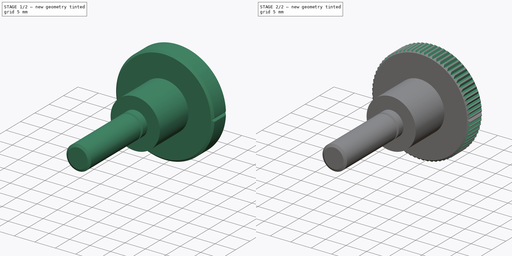
[diagram: build sequence overview — one tinted view per stage of 2, left to right]
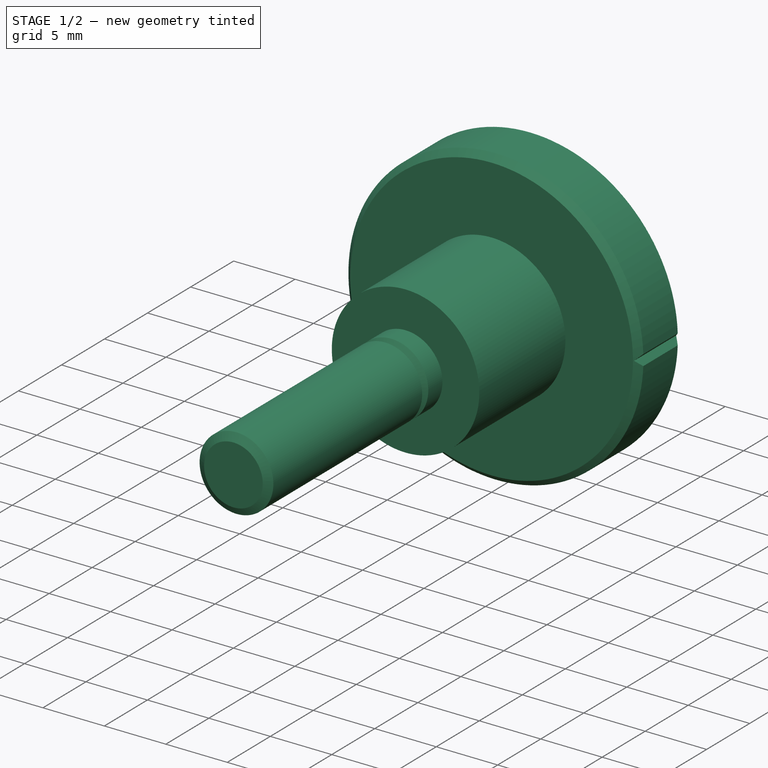
[diagram: stage 1 of 2 — iso view after this stage's code; geometry added in this stage tinted green]
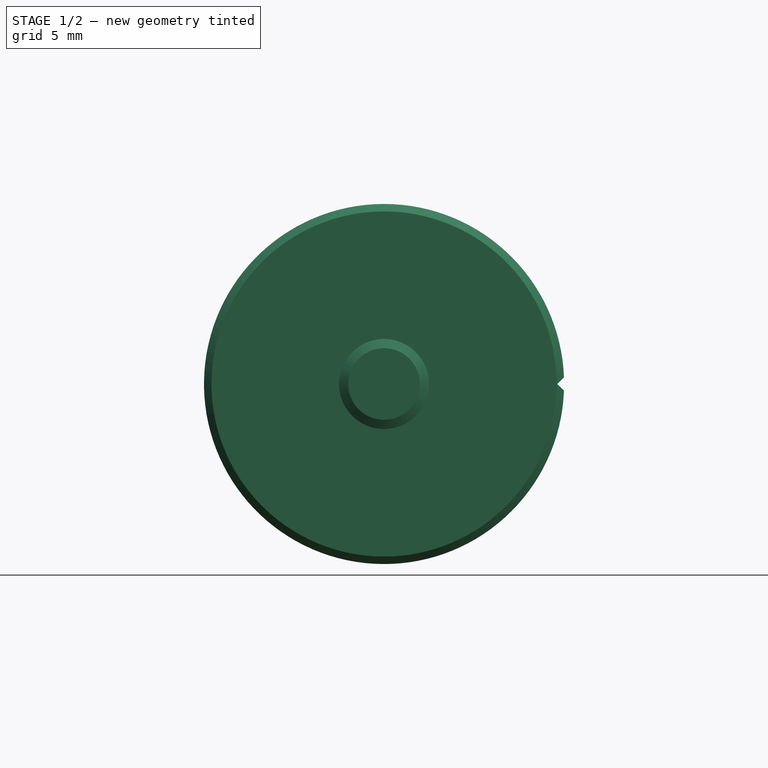
[diagram: stage 1 of 2 — front view after this stage's code; geometry added in this stage tinted green]
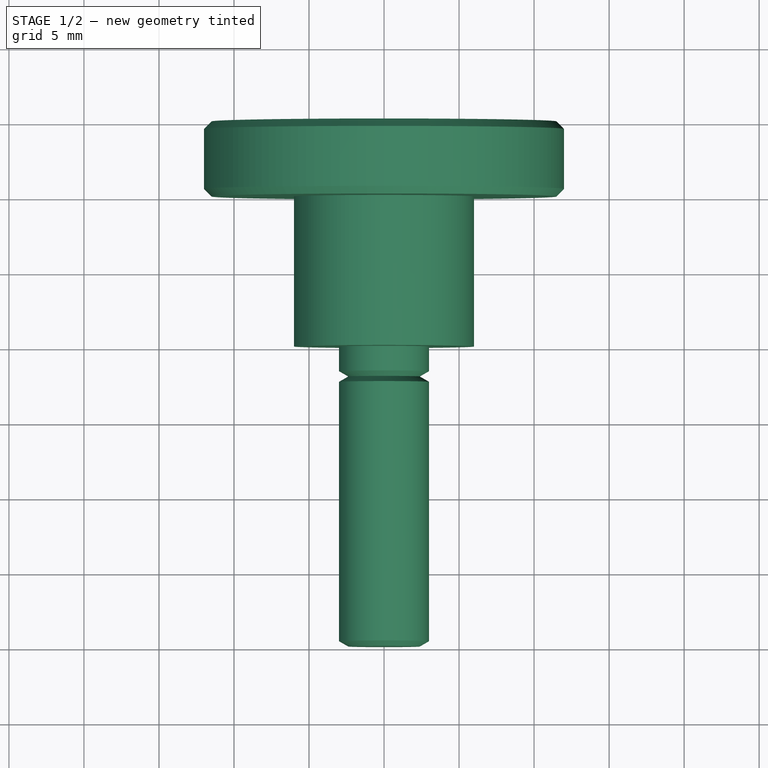
[diagram: stage 1 of 2 — top view after this stage's code; geometry added in this stage tinted green]
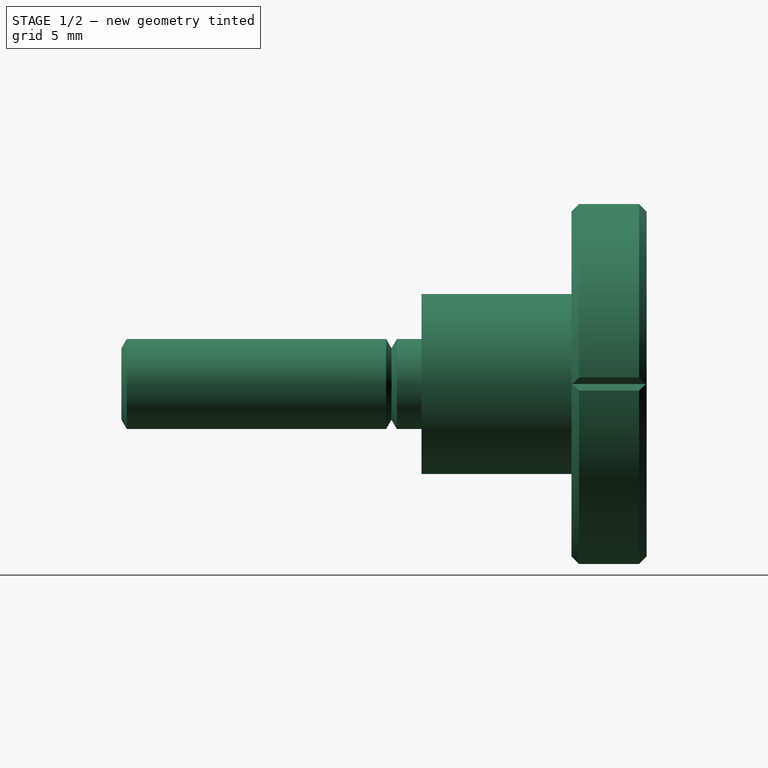
[diagram: stage 1 of 2 — right view after this stage's code; geometry added in this stage tinted green]
FCSTD DOCUMENT  (FreeCAD 0.15R4527 (Git))
Label: Raendelschraube_DIN_464-M6x20
License: All rights reserved
LicenseURL: http://en.wikipedia.org/wiki/All_rights_reserved
objects: Sketcher::SketchObject×2, PartDesign::Revolution×1, PartDesign::Pocket×1, PartDesign::PolarPattern×1
note: 7 computed .brp shape members not serialized (recipe doc carries the construction recipe); baked Part::Feature solids carry a one-line shape summary decoded from their .brp

FEATURE [Sketcher::SketchObject] Sketch
  Placement = pos=(0,0,0) rot=(0.57735,0.57735,0.57735;2.0944rad)
  sketch-geometry (15):
    g0: LineSegment StartX=0 StartY=0 StartZ=0 EndX=0 EndY=2.385 EndZ=0
    g1: LineSegment StartX=0 StartY=2.385 StartZ=0 EndX=0.35507 EndY=3 EndZ=0
    g2: LineSegment StartX=0.35507 StartY=3 StartZ=0 EndX=17.6449 EndY=3 EndZ=0
    g3: LineSegment StartX=20 StartY=3 StartZ=0 EndX=20 EndY=6 EndZ=0
    g4: LineSegment StartX=20 StartY=6 StartZ=0 EndX=30 EndY=6 EndZ=0
    g5: LineSegment StartX=30 StartY=6 StartZ=0 EndX=30 EndY=11.5 EndZ=0
    g6: LineSegment StartX=30 StartY=11.5 StartZ=0 EndX=30.5 EndY=12 EndZ=0
    g7: LineSegment StartX=30.5 StartY=12 StartZ=0 EndX=34.5 EndY=12 EndZ=0
    g8: LineSegment StartX=34.5 StartY=12 StartZ=0 EndX=35 EndY=11.5 EndZ=0
    g9: LineSegment StartX=35 StartY=11.5 StartZ=0 EndX=35 EndY=0 EndZ=0
    g10: LineSegment StartX=35 StartY=0 StartZ=0 EndX=0 EndY=0 EndZ=0
    g11: LineSegment [constr] StartX=30 StartY=11.5 StartZ=0 EndX=35 EndY=11.5 EndZ=0
    g12: LineSegment StartX=17.6449 StartY=3 StartZ=0 EndX=18 EndY=2.385 EndZ=0
    g13: LineSegment StartX=18 StartY=2.385 StartZ=0 EndX=18.3551 EndY=3 EndZ=0
    g14: LineSegment StartX=18.3551 StartY=3 StartZ=0 EndX=20 EndY=3 EndZ=0
  constraints (42):
    c: Coincident(g-1,g0)
    c: PointOnObject(g0,g-2)
    c: Coincident(g0,g1)
    c: Horizontal(g2)
    c: Coincident(g14,g3)
    c: Vertical(g3)
    c: Coincident(g3,g4)
    c: Horizontal(g4)
    c: Coincident(g4,g5)
    c: Vertical(g5)
    c: Coincident(g5,g6)
    c: Coincident(g6,g7)
    c: Horizontal(g7)
    c: Coincident(g7,g8)
    c: Coincident(g8,g9)
    c: Vertical(g9)
    c: Coincident(g9,g10)
    c: Coincident(g10,g0)
    c: Horizontal(g10)
    c: Equal(g6,g8)
    c: Coincident(g11,g5)
    c: Coincident(g11,g8)
    c: Horizontal(g11)
    c: DistanceX(g3,g0) = -20
    c: DistanceY(g0) = 2.385
    c: DistanceY(g-1,g1) = 3
    c: DistanceX(g3,g8) = 15
    c: DistanceX(g11) = 5
    c: DistanceX(g8) = 0.5
    c: DistanceY(g8) = -0.5
    c: DistanceY(g3,g9) = -6
    c: DistanceY(g7,g9) = -12
    c: Coincident(g2,g1)
    c: Angle(g0,g1) = 2.61799
    c: Coincident(g12,g13)
    c: Coincident(g2,g12)
    c: Coincident(g14,g13)
    c: Tangent(g2,g14)
    c: Equal(g12,g13)
    c: Parallel(g13,g1)
    c: Equal(g1,g13)
    c: DistanceX(g12,g0) = -18
FEATURE [PartDesign::Revolution] Revolution
  Angle = 360
  Axis = (0,1,0)
  Base = (0,0,0)
  Placement = pos=(0,0,0) rot=(0.57735,0.57735,0.57735;2.0944rad)
  ReferenceAxis = -> Sketch [H_Axis]
  Sketch = -> Sketch
FEATURE [Sketcher::SketchObject] Sketch001
  Placement = pos=(0,35,0) rot=(0.57735,0.57735,0.57735;4.18879rad)
  Support = -> Revolution [Face13]
  sketch-geometry (3):
    g0: LineSegment StartX=-0.5 StartY=12.05 StartZ=0 EndX=0 EndY=11.55 EndZ=0
    g1: LineSegment StartX=0 StartY=11.55 StartZ=0 EndX=0.5 EndY=12.05 EndZ=0
    g2: LineSegment StartX=0.5 StartY=12.05 StartZ=0 EndX=-0.5 EndY=12.05 EndZ=0
  constraints (9):
    c: PointOnObject(g0,g-2)
    c: Coincident(g0,g1)
    c: Coincident(g1,g2)
    c: Coincident(g2,g0)
    c: Horizontal(g2)
    c: Equal(g1,g0)
    c: Angle(g1,g0) = 1.5708
    c: DistanceY(g-1,g0) = 11.55
    c: DistanceY(g-1,g1) = 12.05
FEATURE [PartDesign::Pocket] Pocket
  Length = 5
  Placement = pos=(0,0,0) rot=(0.57735,0.57735,0.57735;2.0944rad)
  Sketch = -> Sketch001
  Type = 1
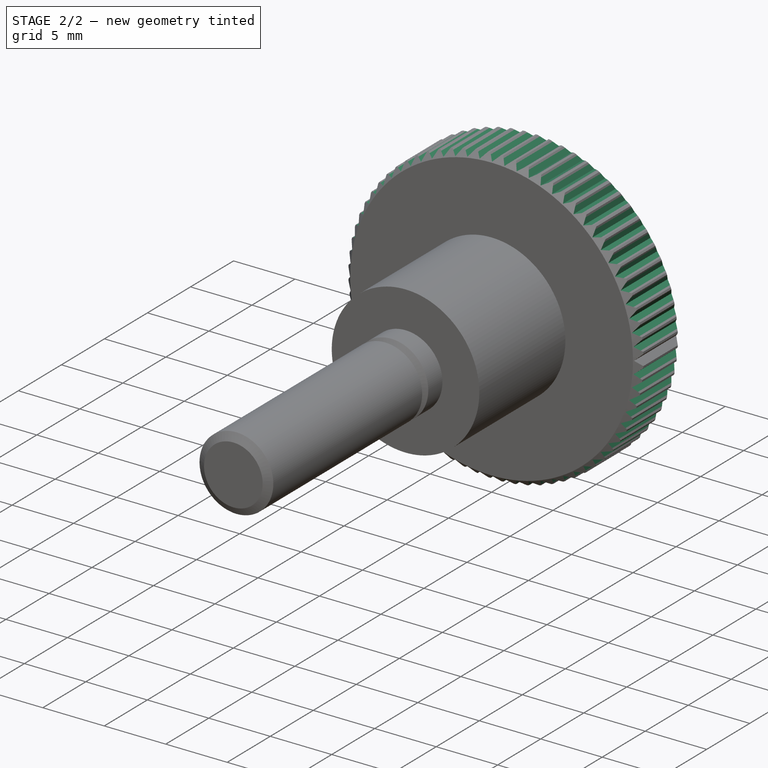
[diagram: stage 2 of 2 — iso view after this stage's code; geometry added in this stage tinted green]
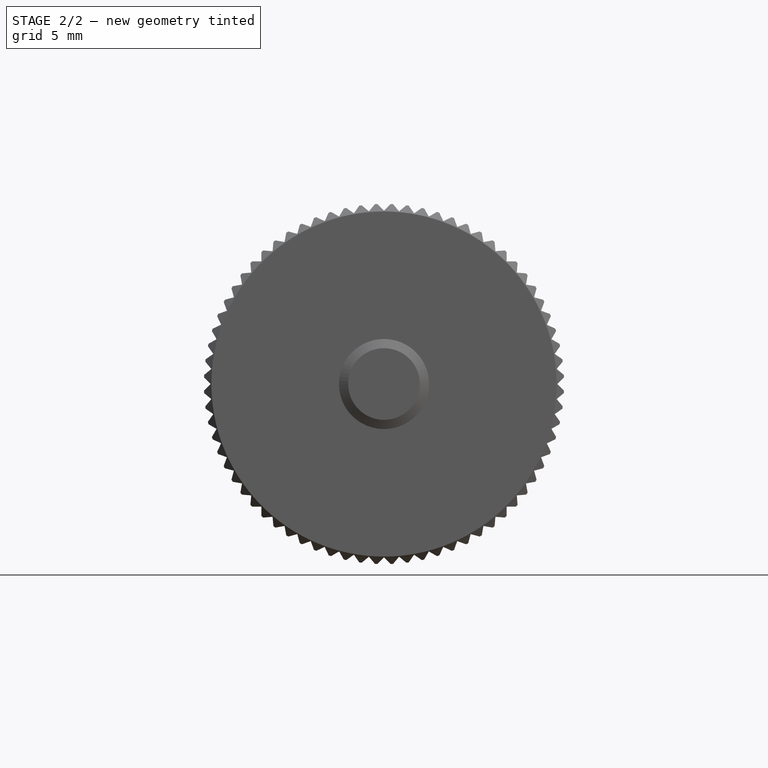
[diagram: stage 2 of 2 — front view after this stage's code; geometry added in this stage tinted green]
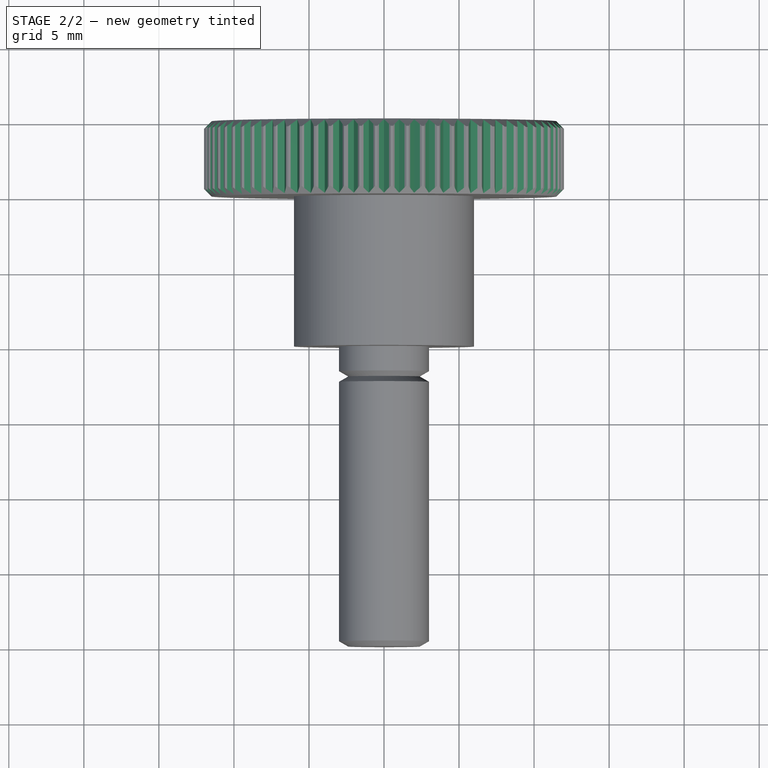
[diagram: stage 2 of 2 — top view after this stage's code; geometry added in this stage tinted green]
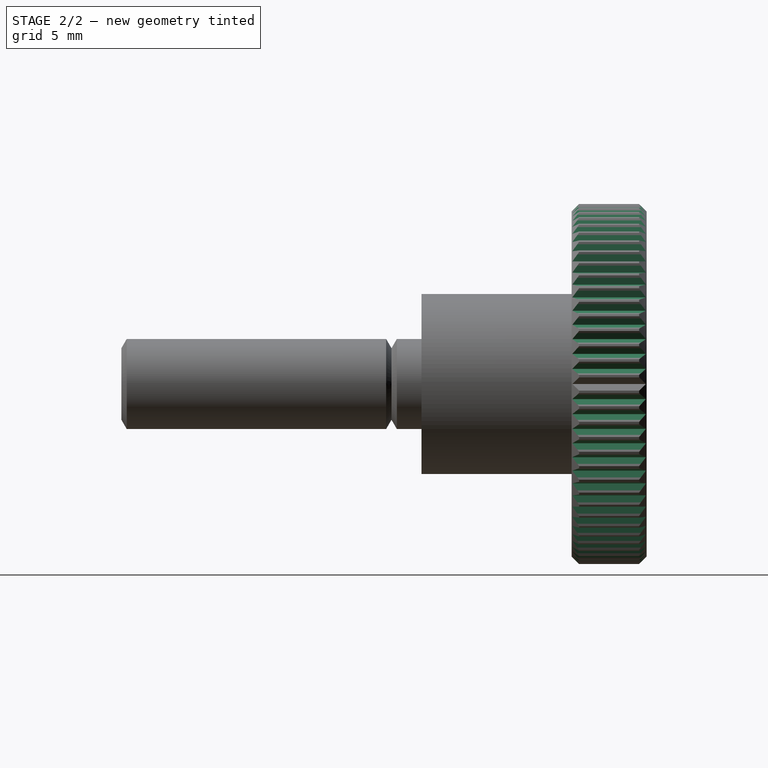
[diagram: stage 2 of 2 — right view after this stage's code; geometry added in this stage tinted green]
FEATURE [PartDesign::PolarPattern] PolarPattern
  Angle = 360
  Axis = -> Sketch001 [N_Axis]
  Occurrences = 72
  Originals = -> [Pocket]
  Placement = pos=(0,0,0) rot=(0.57735,0.57735,0.57735;2.0944rad)
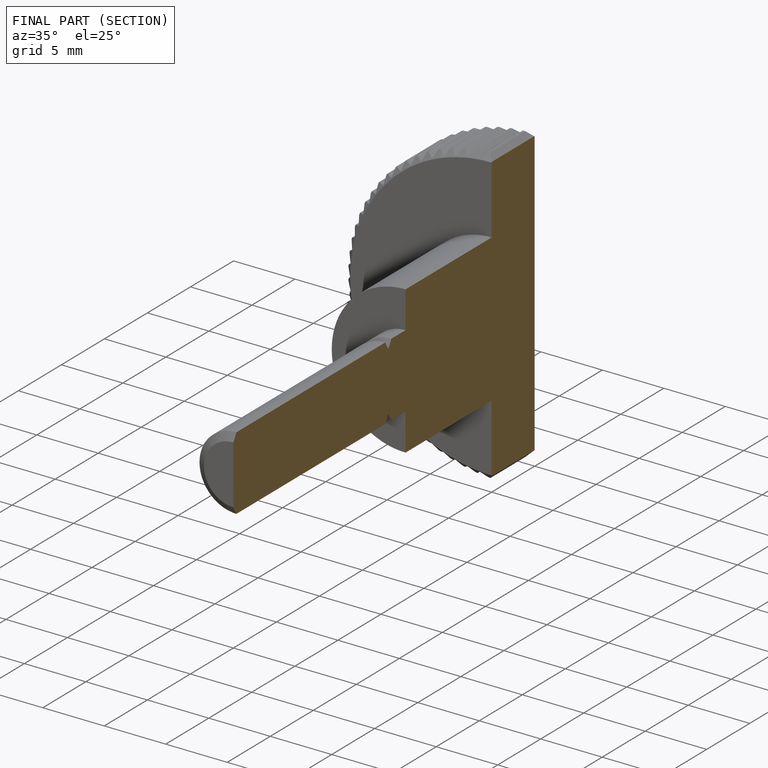
[diagram: finished part — half-section view (interior)]
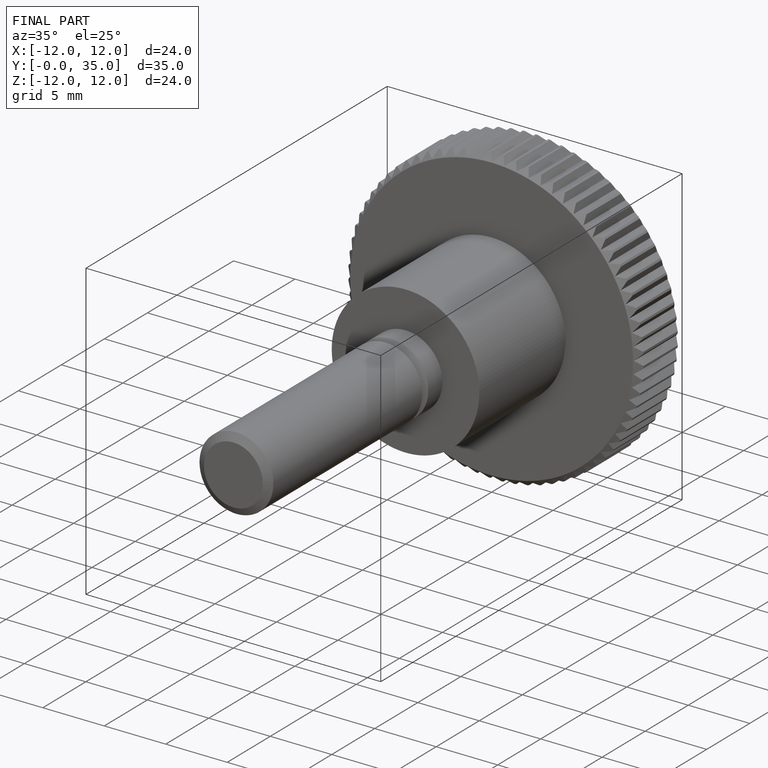
[diagram: finished part — iso view with bounding-box wireframe]
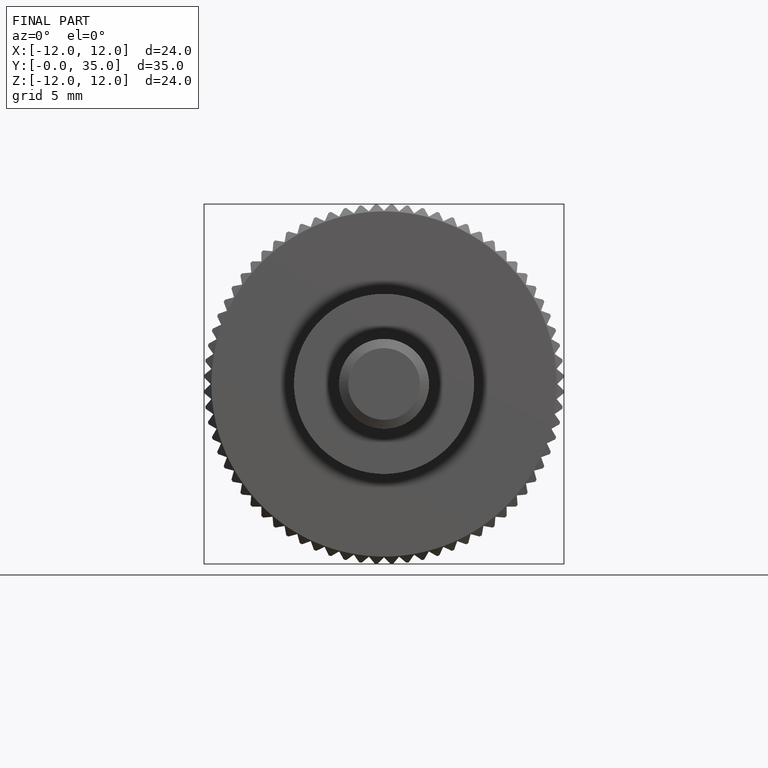
[diagram: finished part — front view with bounding-box wireframe]
